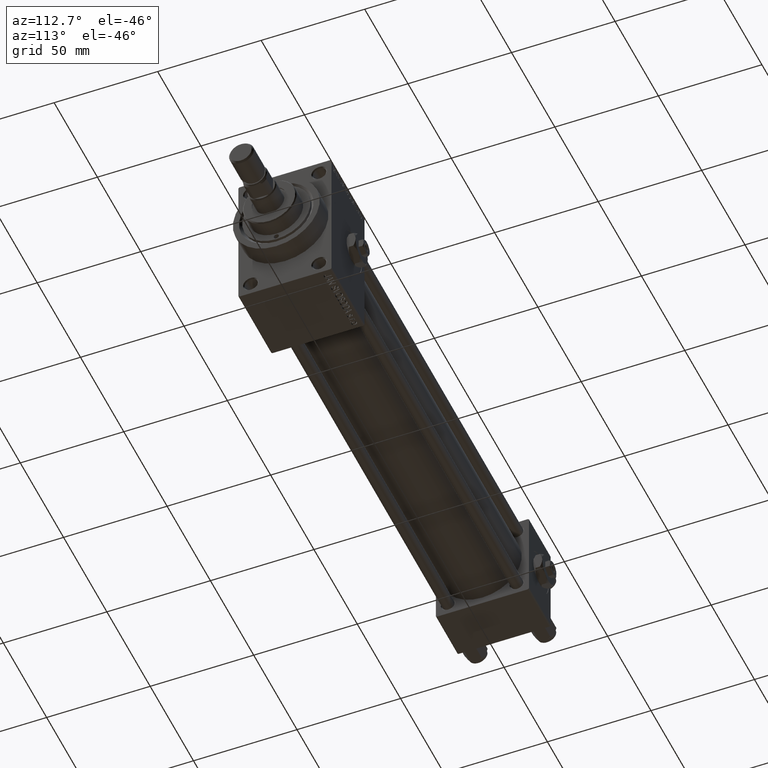
[diagram: clean part render]
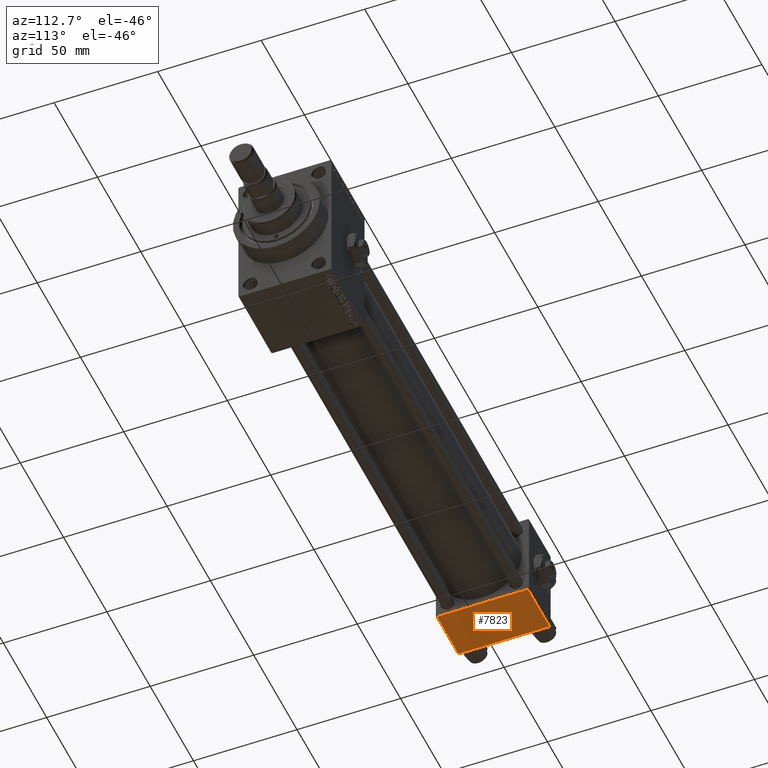
[diagram: same view with one face highlighted and labeled with its STEP entity id]
A machine part, auxiliary view. The second image highlights one B-rep face of the part: STEP entity #7823.
In plain terms, the highlighted planar face has unit normal (0, 0, -1).
Its self-contained STEP definition (entity closure, byte-faithful):
#1580 = CARTESIAN_POINT ( 'NONE',  ( 25.00000000000000000, 21.99999999999999289, -22.49999999999999645 ) ) ;
#3793 = VECTOR ( 'NONE', #14095, 1000.000000000000000 ) ;
#4007 = VECTOR ( 'NONE', #19044, 1000.000000000000000 ) ;
#4518 = DIRECTION ( 'NONE',  ( 0.000000000000000000, 1.000000000000000000, 2.312964634635742957E-16 ) ) ;
#4569 = AXIS2_PLACEMENT_3D ( 'NONE', #27431, #42071, #4518 ) ;
#7823 = ADVANCED_FACE ( 'NONE', ( #11373 ), #46556, .T. ) ;
#7835 = EDGE_CURVE ( 'NONE', #49774, #20839, #23177, .T. ) ;
#9227 = EDGE_CURVE ( 'NONE', #37757, #49774, #22238, .T. ) ;
#10409 = CARTESIAN_POINT ( 'NONE',  ( 25.00000000000000000, 21.99999999999999289, -22.49999999999999645 ) ) ;
#11373 = FACE_OUTER_BOUND ( 'NONE', #34207, .T. ) ;
#12067 = CARTESIAN_POINT ( 'NONE',  ( 0.000000000000000000, -21.99999999999997158, -22.50000000000000711 ) ) ;
#13254 = CARTESIAN_POINT ( 'NONE',  ( 25.00000000000000000, -21.99999999999997158, -22.50000000000000711 ) ) ;
#14095 = DIRECTION ( 'NONE',  ( 0.000000000000000000, -1.000000000000000000, -2.312964634635742957E-16 ) ) ;
#16471 = VECTOR ( 'NONE', #22652, 1000.000000000000000 ) ;
#16522 = ORIENTED_EDGE ( 'NONE', *, *, #7835, .T. ) ;
#18807 = CARTESIAN_POINT ( 'NONE',  ( 0.000000000000000000, -21.99999999999998579, -22.50000000000000711 ) ) ;
#19044 = DIRECTION ( 'NONE',  ( -1.000000000000000000, 0.000000000000000000, 0.000000000000000000 ) ) ;
#19904 = CARTESIAN_POINT ( 'NONE',  ( 25.00000000000000000, 22.50000000000000000, -22.49999999999999645 ) ) ;
#20839 = VERTEX_POINT ( 'NONE', #13254 ) ;
#22238 = LINE ( 'NONE', #10409, #28726 ) ;
#22652 = DIRECTION ( 'NONE',  ( 0.000000000000000000, -1.000000000000000000, -2.312964634635742957E-16 ) ) ;
#23177 = LINE ( 'NONE', #19904, #3793 ) ;
#23541 = LINE ( 'NONE', #18807, #4007 ) ;
#27431 = CARTESIAN_POINT ( 'NONE',  ( 25.00000000000000000, 22.50000000000000000, -22.49999999999999645 ) ) ;
#28593 = ORIENTED_EDGE ( 'NONE', *, *, #9227, .T. ) ;
#28726 = VECTOR ( 'NONE', #41620, 1000.000000000000000 ) ;
#28767 = VERTEX_POINT ( 'NONE', #12067 ) ;
#29831 = ORIENTED_EDGE ( 'NONE', *, *, #32479, .F. ) ;
#31599 = LINE ( 'NONE', #41544, #16471 ) ;
#32479 = EDGE_CURVE ( 'NONE', #37757, #28767, #31599, .T. ) ;
#33200 = CARTESIAN_POINT ( 'NONE',  ( 0.000000000000000000, 21.99999999999999289, -22.49999999999999645 ) ) ;
#34207 = EDGE_LOOP ( 'NONE', ( #29831, #28593, #16522, #38606 ) ) ;
#37165 = EDGE_CURVE ( 'NONE', #20839, #28767, #23541, .T. ) ;
#37757 = VERTEX_POINT ( 'NONE', #33200 ) ;
#38606 = ORIENTED_EDGE ( 'NONE', *, *, #37165, .T. ) ;
#41544 = CARTESIAN_POINT ( 'NONE',  ( 0.000000000000000000, 22.50000000000000000, -22.49999999999999645 ) ) ;
#41620 = DIRECTION ( 'NONE',  ( 1.000000000000000000, 0.000000000000000000, 0.000000000000000000 ) ) ;
#42071 = DIRECTION ( 'NONE',  ( 0.000000000000000000, 2.312964634635742957E-16, -1.000000000000000000 ) ) ;
#46556 = PLANE ( 'NONE',  #4569 ) ;
#49774 = VERTEX_POINT ( 'NONE', #1580 ) ;